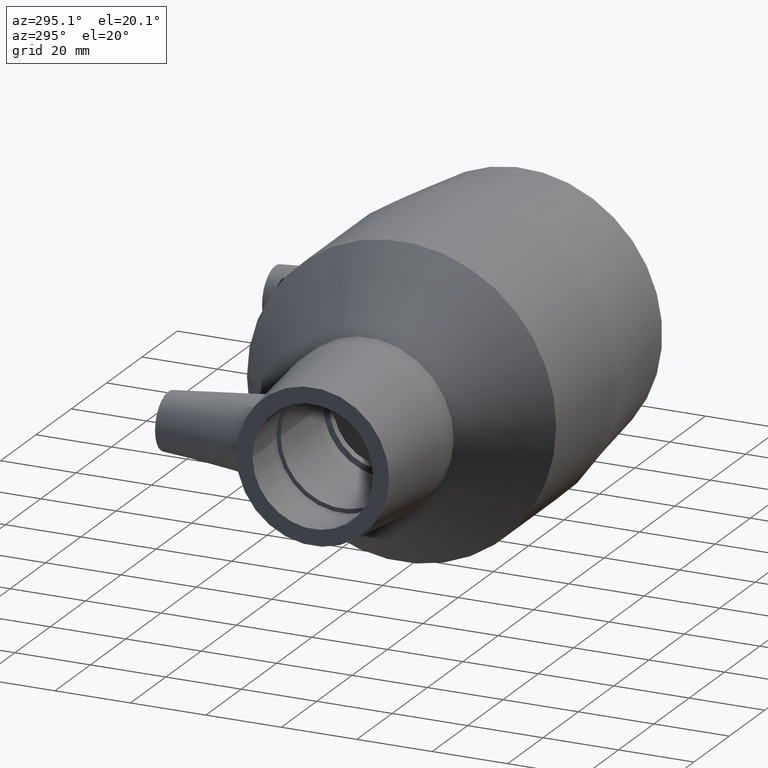
[diagram: clean part render]
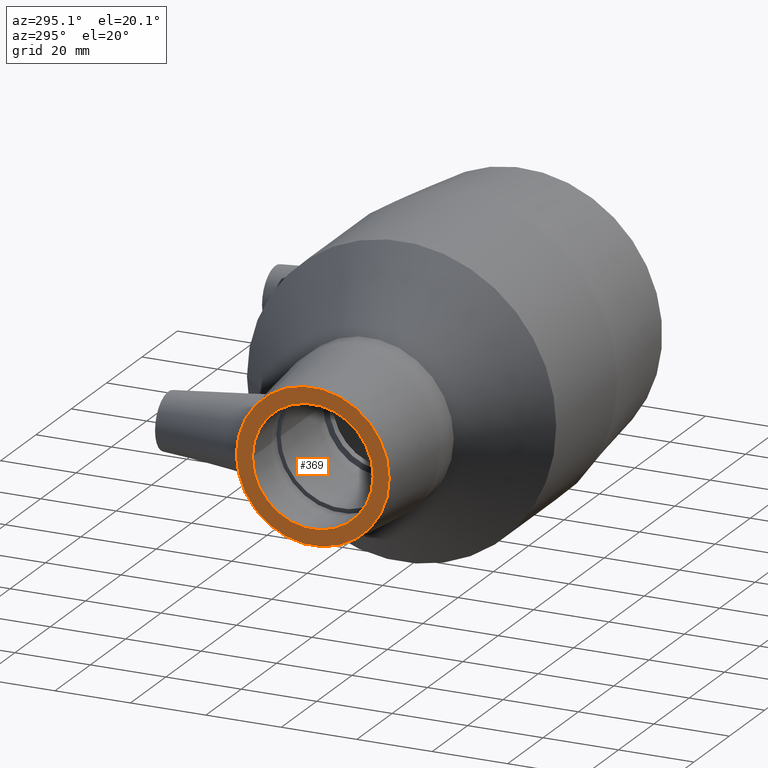
[diagram: same view with one face highlighted and labeled with its STEP entity id]
A machine part, auxiliary view. The second image highlights one B-rep face of the part: STEP entity #369.
In plain terms, the highlighted planar face has unit normal (-1, -0, 0).
Its self-contained STEP definition (entity closure, byte-faithful):
#56=FACE_BOUND('',#160,.T.);
#99=FACE_OUTER_BOUND('',#159,.T.);
#159=EDGE_LOOP('',(#321));
#160=EDGE_LOOP('',(#322));
#191=CIRCLE('',#431,16.);
#192=CIRCLE('',#433,20.25);
#223=VERTEX_POINT('',#726);
#224=VERTEX_POINT('',#729);
#257=EDGE_CURVE('',#223,#223,#191,.T.);
#258=EDGE_CURVE('',#224,#224,#192,.T.);
#321=ORIENTED_EDGE('',*,*,#258,.F.);
#322=ORIENTED_EDGE('',*,*,#257,.T.);
#338=PLANE('',#432);
#369=ADVANCED_FACE('',(#99,#56),#338,.T.);
#431=AXIS2_PLACEMENT_3D('',#727,#553,#554);
#432=AXIS2_PLACEMENT_3D('',#728,#555,#556);
#433=AXIS2_PLACEMENT_3D('',#730,#557,#558);
#553=DIRECTION('center_axis',(1.,1.83697019872103E-16,0.));
#554=DIRECTION('ref_axis',(0.,0.,-1.));
#555=DIRECTION('center_axis',(-1.,-1.83697019872103E-16,0.));
#556=DIRECTION('ref_axis',(0.,0.,1.));
#557=DIRECTION('center_axis',(1.,1.83697019872103E-16,0.));
#558=DIRECTION('ref_axis',(0.,0.,-1.));
#726=CARTESIAN_POINT('',(-59.5,16.,0.));
#727=CARTESIAN_POINT('Origin',(-59.5,-4.93038065763132E-31,0.));
#728=CARTESIAN_POINT('Origin',(-59.5,20.25,0.));
#729=CARTESIAN_POINT('',(-59.5,20.25,0.));
#730=CARTESIAN_POINT('Origin',(-59.5,0.,0.));